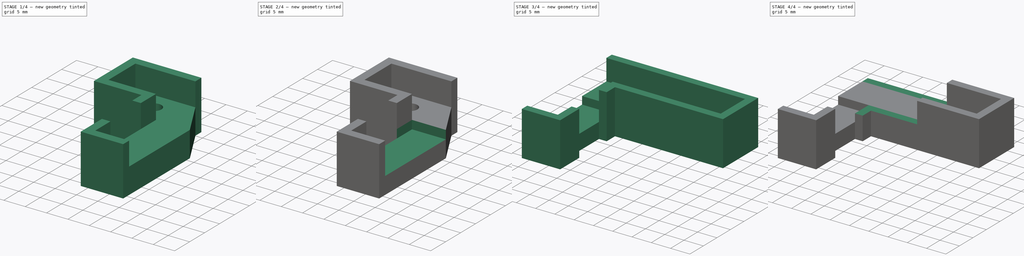
[diagram: build sequence overview — one tinted view per stage of 4, left to right]
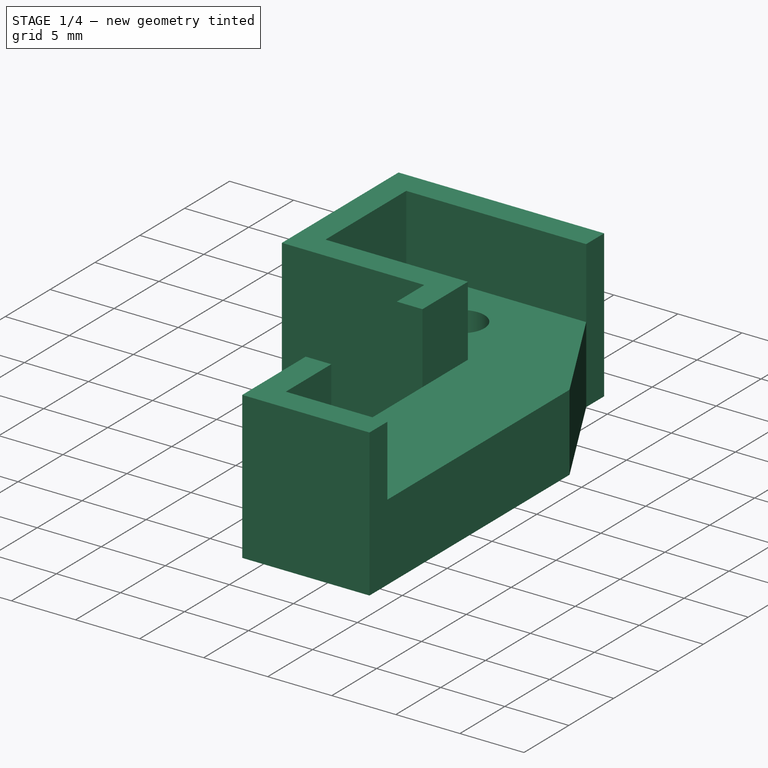
[diagram: stage 1 of 4 — iso view after this stage's code; geometry added in this stage tinted green]
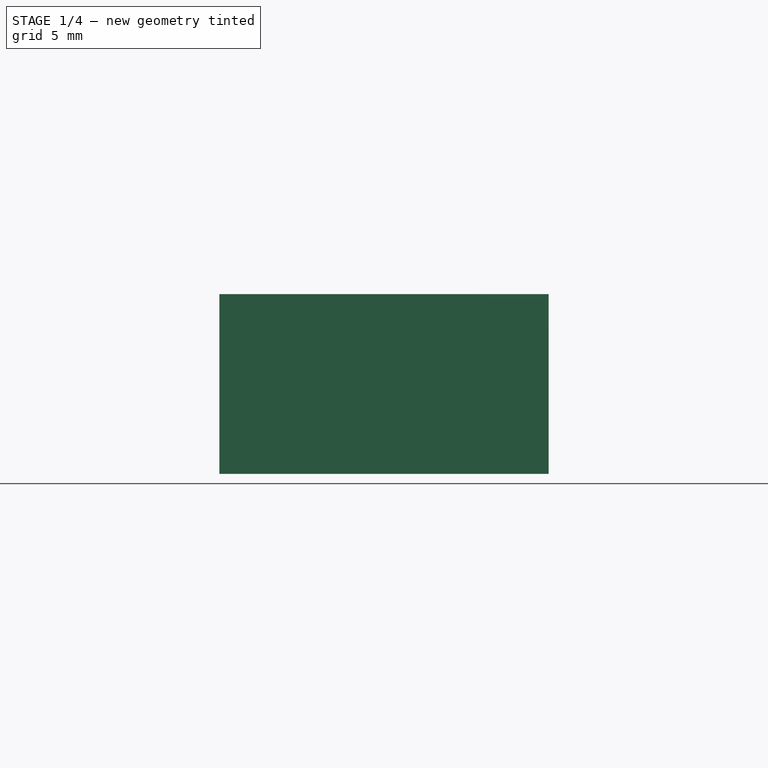
[diagram: stage 1 of 4 — front view after this stage's code; geometry added in this stage tinted green]
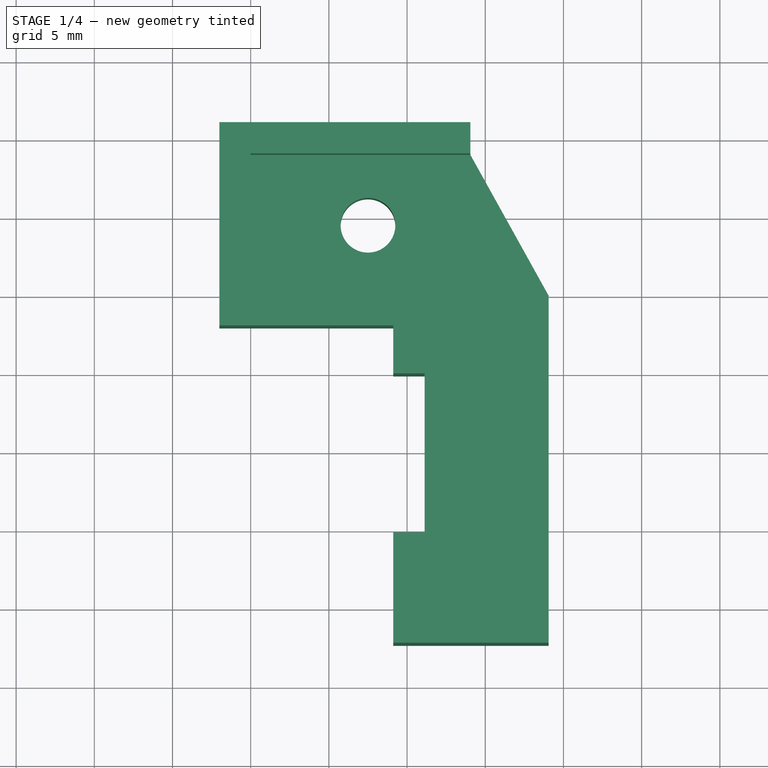
[diagram: stage 1 of 4 — top view after this stage's code; geometry added in this stage tinted green]
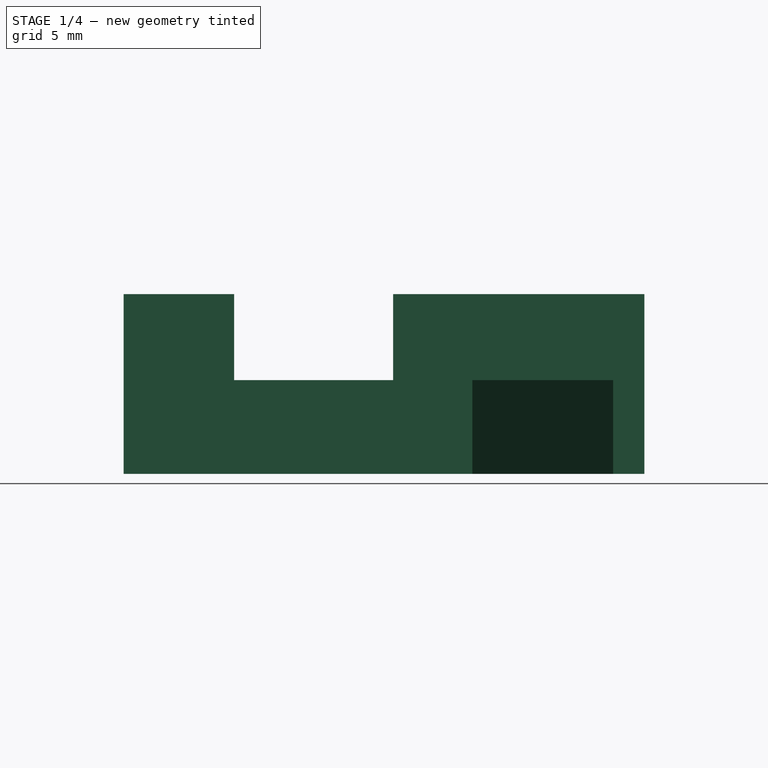
[diagram: stage 1 of 4 — right view after this stage's code; geometry added in this stage tinted green]
FCSTD DOCUMENT  (FreeCAD 0.21R33668 +26 (Git))
Label: BaseMagnetoPot
License: All rights reserved
LicenseURL: http://en.wikipedia.org/wiki/All_rights_reserved
objects: Sketcher::SketchObject×10, PartDesign::Pocket×5, PartDesign::Pad×4, PartDesign::SubShapeBinder×2, PartDesign::Body×2
note: 32 computed .brp shape members not serialized (recipe doc carries the construction recipe); baked Part::Feature solids carry a one-line shape summary decoded from their .brp
EXTERNAL_REF file=MG/Datasheet.FCStd obj=Spreadsheet
EXTERNAL_REF file=MG/mgn9c_13.FCStd obj=Body
EXTERNAL_REF file=MagnetoPot/MagnetoPot.FCStd obj=Body
EXTERNAL_REF file=MG/mgn9c_13.FCStd obj=Sketch

FEATURE [PartDesign::SubShapeBinder] Binder  label="Rail"
  BindCopyOnChange = 0
  BindMode = 0
  ClaimChildren = false
  Context = -> Body [Binder.]
  Fuse = false
  MakeFace = true
  OffsetFill = false
  OffsetIntersection = false
  OffsetJoinType = 0
  OffsetOpenResult = false
  PartialLoad = false
  Relative = true
  Support = -> [<external MG/mgn9c_13.FCStd>#Body]
  _Version = 2
FEATURE [Sketcher::SketchObject] Sketch
  ExternalGeometry = -> [Binder]
  FullyConstrained = true
  MapMode = 5
  Support = -> [XY_Plane]
  expr: .Constraints.EndStopToActiveDistance = (<<Datasheet>>#<<mgn9c>>.Dim_L - <<Datasheet>>#<<mgn9c>>.Dim_L1) / 2
  expr: .Constraints.PartWidth = 20.3
  expr: .Constraints.TravelDistance = 200 mm + <<Datasheet>>#<<mgn9c>>.Dim_L - 2 mm
  expr: Constraints[25] = <<Datasheet>>#<<mgn9c>>.Dim_L
  sketch-geometry (23):
    g0: Circle CenterX=7.5 CenterY=4.5 CenterZ=0 NormalX=0 NormalY=0 NormalZ=1 AngleXU=0 Radius=1.75
    g1: LineSegment StartX=0 StartY=0 StartZ=0 EndX=14.05 EndY=0 EndZ=0
    g2: LineSegment StartX=14.05 StartY=0 StartZ=0 EndX=14.05 EndY=9 EndZ=0
    g3: LineSegment StartX=14.05 StartY=9 StartZ=0 EndX=0 EndY=9 EndZ=0
    g4: LineSegment StartX=0 StartY=9 StartZ=0 EndX=0 EndY=0 EndZ=0
    g5: GeomPoint X=127.5 Y=9 Z=0
    g6: GeomPoint X=240.95 Y=9 Z=0
    g7: GeomPoint X=7.5 Y=6.25 Z=0
    g8: LineSegment StartX=14.05 StartY=9 StartZ=0 EndX=19.05 EndY=9 EndZ=0
    g9: LineSegment StartX=19.05 StartY=0 StartZ=0 EndX=14.05 EndY=9 EndZ=0
    g10: GeomPoint X=219.05 Y=0 Z=0
    g11: GeomPoint X=212.05 Y=9 Z=0
    g12: GeomPoint X=119.05 Y=0 Z=0
    g13: GeomPoint X=11.12 Y=0 Z=0
    g14: GeomPoint X=226.98 Y=0 Z=0
    g15: LineSegment StartX=19.05 StartY=0 StartZ=0 EndX=19.05 EndY=-20.3 EndZ=0
    g16: LineSegment StartX=11.12 StartY=-20.3 StartZ=0 EndX=19.05 EndY=-20.3 EndZ=0
    g17: LineSegment StartX=11.12 StartY=0 StartZ=0 EndX=11.12 EndY=-20.3 EndZ=0
    g18: GeomPoint X=0 Y=0 Z=0
    g19: GeomPoint X=11.12 Y=0 Z=0
    g20: GeomPoint X=0 Y=0 Z=0
    g21: GeomPoint X=11.12 Y=0 Z=0
    g22: LineSegment StartX=0 StartY=0 StartZ=0 EndX=11.12 EndY=0 EndZ=0
  constraints (49):
    c: Coincident(g0,g-5)
    c: Coincident(g1,g2)
    c: Coincident(g2,g3)
    c: Coincident(g3,g4)
    c: Coincident(g4,g1)
    c: Horizontal(g1)
    c: Horizontal(g3)
    c: Vertical(g2)
    c: Vertical(g4)
    c: Coincident(g1,g-4)
    c: PointOnObject(g2,g-3)
    c: Symmetric(g3,g-3,g5)
    c: Symmetric(g2,g6,g5)
    c: DistanceX(g2,g6) = 226.9  'TravelDistance'
    c: PointOnObject(g7,g0)
    c: PointOnObject(g7,g-5)
    c: Vertical(g7,g0)
    c: Coincident(g8,g3)
    c: PointOnObject(g8,g-3)
    c: DistanceX(g8,g8) = 5  'EndStopToActiveDistance'
    c: PointOnObject(g9,g-4)
    c: Coincident(g9,g3)
    c: PointOnObject(g10,g-4)
    c: DistanceX(g9,g10) = 200  'MagnetoPotActiveLength'
    c: PointOnObject(g11,g-3)
    c: DistanceX(g11,g6) = 28.9
    c: Symmetric(g10,g9,g12)
    c: Symmetric(g14,g13,g12)
    c: DistanceX(g13,g14) = 215.86  'MagnetoPotPartLength'
    c: Vertical(g9,g8)
    c: Coincident(g15,g9)
    c: Vertical(g15)
    c: Coincident(g16,g15)
    c: Horizontal(g16)
    c: Coincident(g17,g16)
    c: Coincident(g18,g4)
    c: Coincident(g19,g17)
    c: Vertical(g17)
    c: DistanceY(g17,g17) = 20.3  'PartWidth'
    c: Coincident(g20,g4)
    c: Coincident(g21,g17)
    c: Coincident(g22,g4)
    c: Coincident(g22,g17)
    c: PointOnObject(g17,g1)
    c: Coincident(g17,g13)
    c: DistanceX(g14,g-4) = 28.02  'Base_End'
    c: DistanceX(g3,g3) = 14.05  'EndStopDistance'
    c: DistanceX(g4,g17) = 11.12  'Rail_To_Part'
    c: DistanceX(g16,g15) = 7.93  'PartStartToActiveStart'
FEATURE [PartDesign::Pad] Pad
  Direction = (0,0,1)
  Length = 6
  Length2 = 10
  Profile = -> Sketch
  ReferenceAxis = -> Sketch [N_Axis]
  Reversed = true
  Type = 0
FEATURE [PartDesign::SubShapeBinder] Binder001  label="MagnetoPot_Binder"
  BindCopyOnChange = 0
  BindMode = 0
  ClaimChildren = false
  Context = -> Body [Binder001.]
  Fuse = false
  MakeFace = true
  OffsetFill = false
  OffsetIntersection = false
  OffsetJoinType = 0
  OffsetOpenResult = false
  PartialLoad = false
  Placement = pos=(5,-20.5,0) rot=(0,0,1;0rad)
  Relative = true
  Support = -> [<external MagnetoPot/MagnetoPot.FCStd>#Body]
  _Version = 2
FEATURE [Sketcher::SketchObject] Sketch001
  ExternalGeometry = -> [Pad]
  FullyConstrained = true
  MapMode = 5
  Placement = pos=(0,0,-6) rot=(1,0,0;3.14159rad)
  Support = -> [Pad]
  expr: .Constraints.MagnetoPotTailWidth = 10.16
  expr: Constraints[22] = .Constraints.Strength
  expr: Constraints[23] = .Constraints.Strength
  expr: Constraints[25] = .Constraints.Strength
  expr: Constraints[28] = .Constraints.Strength
  sketch-geometry (21):
    g0: LineSegment StartX=19.05 StartY=20.3 StartZ=0 EndX=19.05 EndY=22.3 EndZ=0
    g1: LineSegment StartX=19.05 StartY=22.3 StartZ=0 EndX=9.12 EndY=22.3 EndZ=0
    g2: LineSegment StartX=9.12 StartY=22.3 StartZ=0 EndX=9.12 EndY=2 EndZ=0
    g3: LineSegment StartX=9.12 StartY=2 StartZ=0 EndX=-2 EndY=2 EndZ=0
    g4: LineSegment StartX=-2 StartY=2 StartZ=0 EndX=-2 EndY=-11 EndZ=0
    g5: LineSegment StartX=-2 StartY=-11 StartZ=0 EndX=14.05 EndY=-11 EndZ=0
    g6: LineSegment StartX=14.05 StartY=-11 StartZ=0 EndX=14.05 EndY=-9 EndZ=0
    g7: LineSegment StartX=14.05 StartY=-9 StartZ=0 EndX=0 EndY=-9 EndZ=0
    g8: LineSegment StartX=0 StartY=0 StartZ=0 EndX=0 EndY=-9 EndZ=0
    g9: LineSegment StartX=0 StartY=0 StartZ=0 EndX=11.12 EndY=0 EndZ=0
    g10: LineSegment StartX=11.12 StartY=0 StartZ=0 EndX=11.12 EndY=20.3 EndZ=0
    g11: LineSegment StartX=11.12 StartY=20.3 StartZ=0 EndX=19.05 EndY=20.3 EndZ=0
    g12: GeomPoint X=11.12 Y=15.23 Z=0
    g13: GeomPoint X=11.12 Y=10.15 Z=0
    g14: GeomPoint X=11.12 Y=5.07 Z=0
    g15: LineSegment StartX=11.12 StartY=20.3 StartZ=0 EndX=11.12 EndY=15.23 EndZ=0
    g16: LineSegment StartX=11.12 StartY=15.23 StartZ=0 EndX=9.12 EndY=15.23 EndZ=0
    g17: LineSegment StartX=9.12 StartY=15.23 StartZ=0 EndX=9.12 EndY=22.3 EndZ=0
    g18: LineSegment StartX=11.12 StartY=5.07 StartZ=0 EndX=9.12 EndY=5.07 EndZ=0
    g19: LineSegment StartX=9.12 StartY=5.07 StartZ=0 EndX=9.12 EndY=2 EndZ=0
    g20: LineSegment StartX=11.12 StartY=0 StartZ=0 EndX=11.12 EndY=5.07 EndZ=0
  constraints (48):
    c: Coincident(g0,g-7)
    c: Vertical(g0)
    c: Horizontal(g1)
    c: Coincident(g2,g1)
    c: Coincident(g3,g2)
    c: Horizontal(g3)
    c: Coincident(g4,g3)
    c: Coincident(g5,g4)
    c: Coincident(g6,g5)
    c: Coincident(g6,g-5)
    c: Coincident(g7,g6)
    c: Coincident(g7,g-5)
    c: Coincident(g8,g-4)
    c: Coincident(g8,g7)
    c: Coincident(g9,g8)
    c: Coincident(g9,g-6)
    c: Coincident(g10,g9)
    c: Coincident(g10,g-7)
    c: Coincident(g11,g10)
    c: Coincident(g11,g0)
    c: Coincident(g0,g1)
    c: DistanceY(g0,g0) = 2  'Strength'
    c: DistanceX(g1,g10) = 2
    c: DistanceY(g9,g2) = 2
    c: Vertical(g2)
    c: DistanceX(g3,g8) = 2
    c: Vertical(g4)
    c: Horizontal(g5)
    c: DistanceY(g4,g7) = 2
    c: Vertical(g6)
    c: PointOnObject(g12,g10)
    c: Symmetric(g9,g11,g13)
    c: Symmetric(g12,g14,g13)
    c: DistanceY(g14,g12) = 10.16  'MagnetoPotTailWidth'
    c: Coincident(g15,g11)
    c: Coincident(g15,g12)
    c: Coincident(g16,g12)
    c: PointOnObject(g16,g2)
    c: Horizontal(g16)
    c: Coincident(g17,g16)
    c: Coincident(g17,g1)
    c: Coincident(g18,g14)
    c: PointOnObject(g18,g2)
    c: Coincident(g19,g18)
    c: Coincident(g19,g3)
    c: Coincident(g20,g9)
    c: Coincident(g20,g18)
    c: Horizontal(g18)
FEATURE [PartDesign::Pad] Pad001
  BaseFeature = -> Pad
  Direction = (0,0,-1)
  Length = 11.5
  Length2 = 10
  Profile = -> Sketch001
  ReferenceAxis = -> Sketch001 [N_Axis]
  Reversed = true
  Type = 0
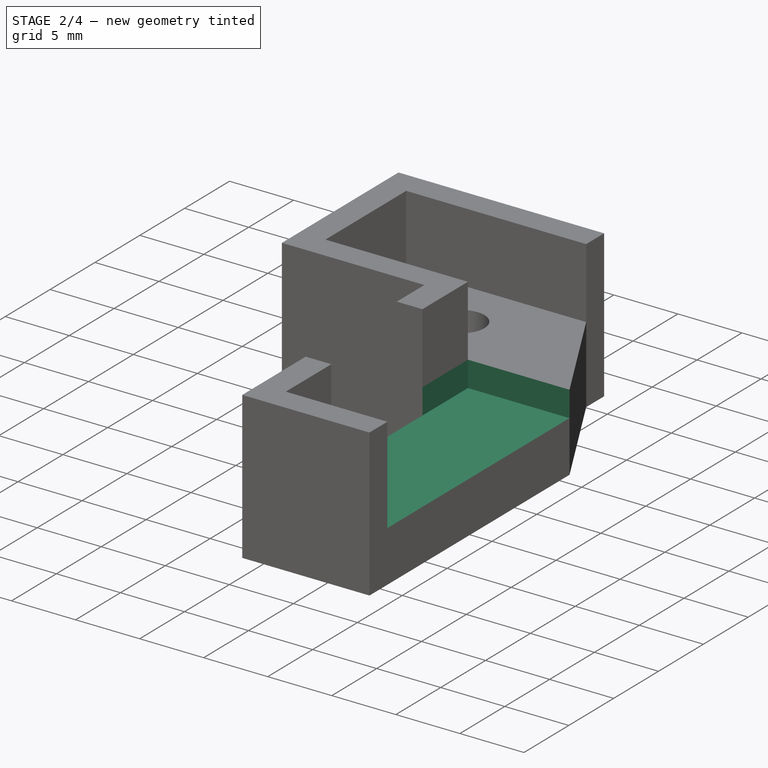
[diagram: stage 2 of 4 — iso view after this stage's code; geometry added in this stage tinted green]
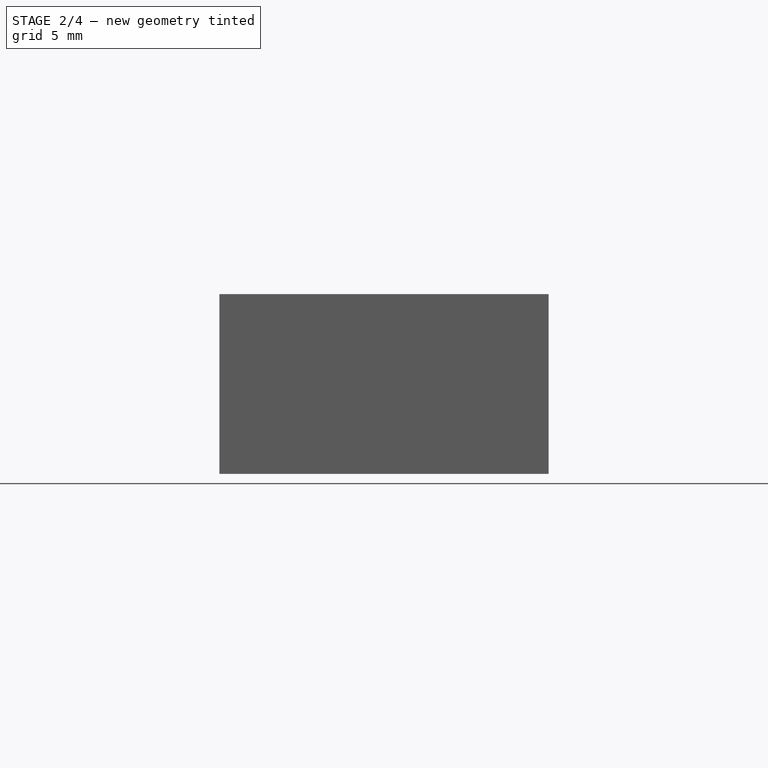
[diagram: stage 2 of 4 — front view after this stage's code; geometry added in this stage tinted green]
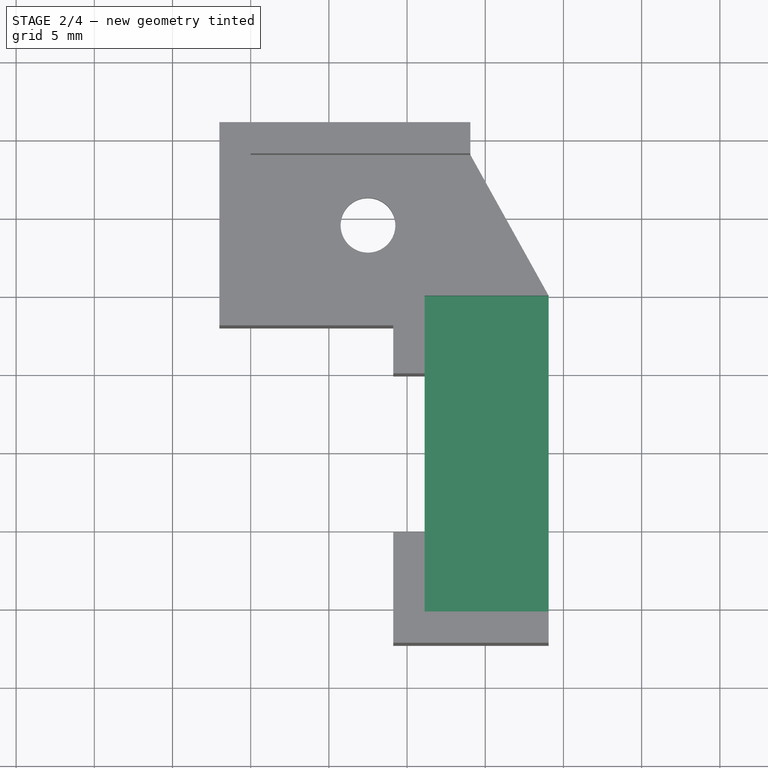
[diagram: stage 2 of 4 — top view after this stage's code; geometry added in this stage tinted green]
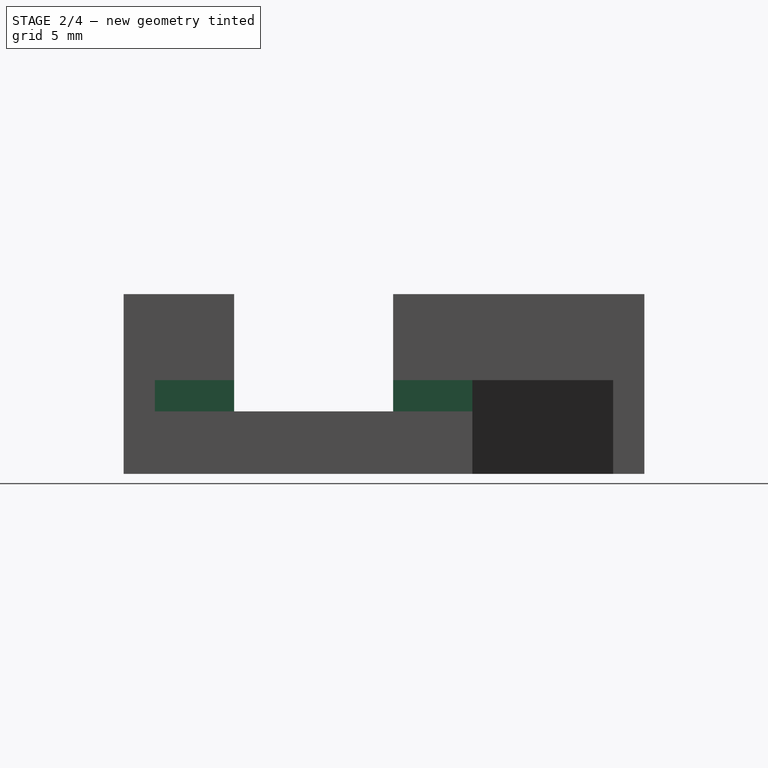
[diagram: stage 2 of 4 — right view after this stage's code; geometry added in this stage tinted green]
FEATURE [Sketcher::SketchObject] Sketch002
  ExternalGeometry = -> [Pad001]
  FullyConstrained = true
  MapMode = 5
  Support = -> [Pad001]
  sketch-geometry (4):
    g0: LineSegment StartX=19.05 StartY=0 StartZ=0 EndX=11.12 EndY=0 EndZ=0
    g1: LineSegment StartX=11.12 StartY=0 StartZ=0 EndX=11.12 EndY=-20.3 EndZ=0
    g2: LineSegment StartX=11.12 StartY=-20.3 StartZ=0 EndX=19.05 EndY=-20.3 EndZ=0
    g3: LineSegment StartX=19.05 StartY=-20.3 StartZ=0 EndX=19.05 EndY=0 EndZ=0
  constraints (10):
    c: Coincident(g0,g1)
    c: Coincident(g1,g2)
    c: Coincident(g2,g3)
    c: Coincident(g3,g0)
    c: Horizontal(g0)
    c: Horizontal(g2)
    c: Vertical(g1)
    c: Coincident(g0,g-4)
    c: PointOnObject(g-3,g1)
    c: Coincident(g2,g-4)
FEATURE [PartDesign::Pocket] Pocket
  BaseFeature = -> Pad001
  Direction = (0,0,-1)
  Length = 2
  Length2 = 5
  Profile = -> Sketch002
  ReferenceAxis = -> Sketch002 [N_Axis]
  Type = 0
  expr: Length = 3.5 mm - <<Datasheet>>#<<mgn9c>>.Dim_H1 + 0.5 mm
FEATURE [Sketcher::SketchObject] Sketch003
  ExternalGeometry = -> [Pocket]
  FullyConstrained = true
  MapMode = 5
  Placement = pos=(0,0,-6) rot=(1,0,0;3.14159rad)
  Support = -> [Pocket]
  expr: Constraints[1] = <<Datasheet>>#<<mgn9c>>.Dim_D
  sketch-geometry (1):
    g0: Circle CenterX=7.5 CenterY=-4.5 CenterZ=0 NormalX=0 NormalY=0 NormalZ=1 AngleXU=0 Radius=3
  constraints (2):
    c: Coincident(g0,g-3)
    c: Diameter(g0) = 6
FEATURE [PartDesign::Pocket] Pocket001
  BaseFeature = -> Pocket
  Direction = (0,0,1)
  Length = 4
  Length2 = 5
  Profile = -> Sketch003
  ReferenceAxis = -> Sketch003 [N_Axis]
  Type = 0
  expr: Length = <<Pad>>.Length - (<<Datasheet>>#<<mgn9c>>.Dim_Hr - <<Datasheet>>#<<mgn9c>>.Dim_h - 1 mm)
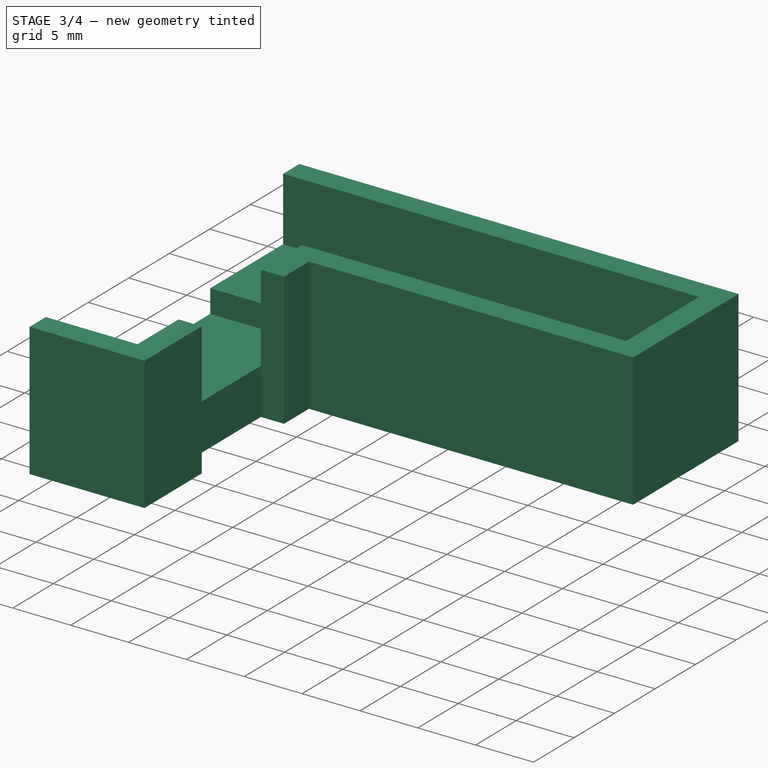
[diagram: stage 3 of 4 — iso view after this stage's code; geometry added in this stage tinted green]
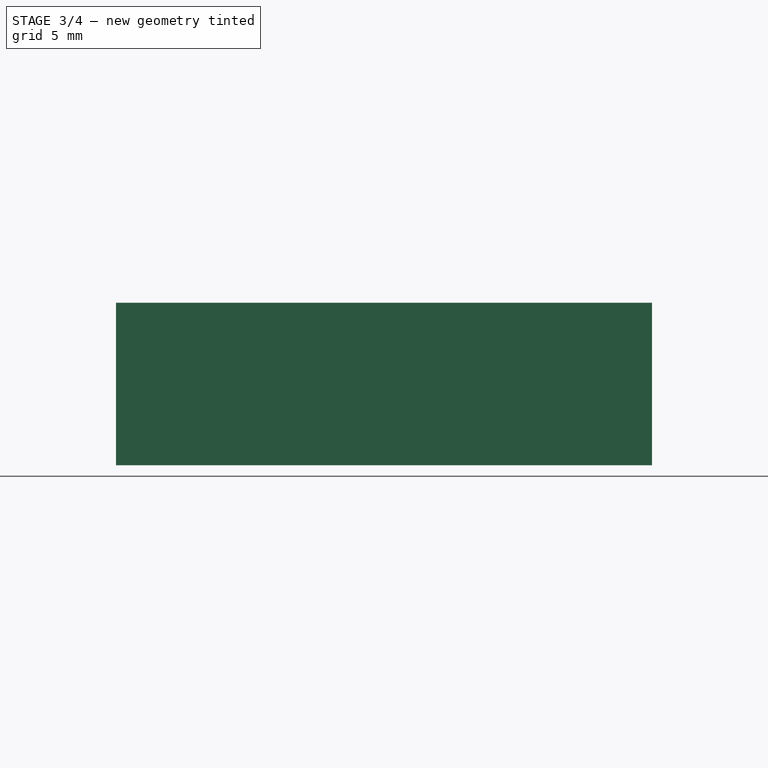
[diagram: stage 3 of 4 — front view after this stage's code; geometry added in this stage tinted green]
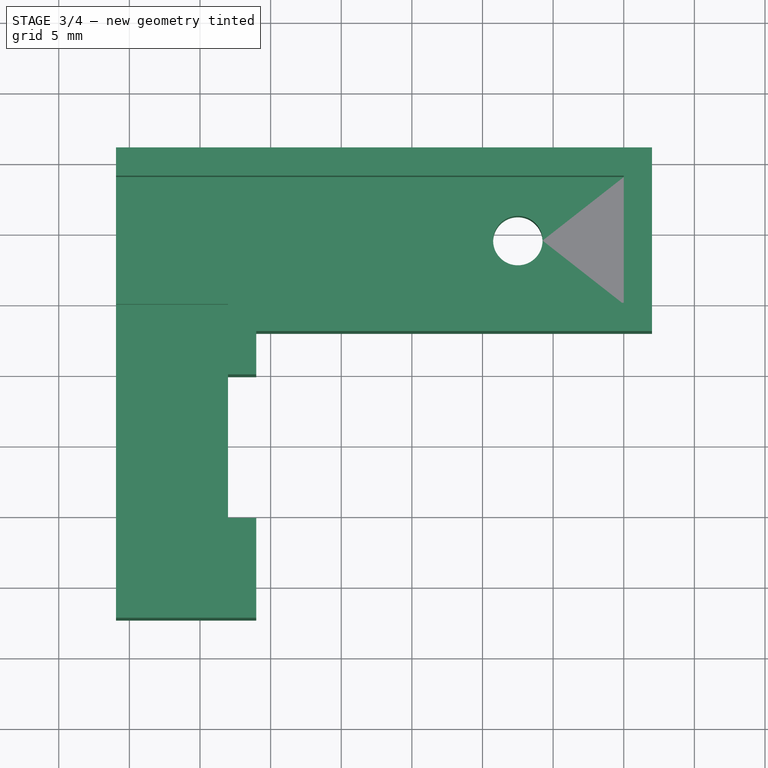
[diagram: stage 3 of 4 — top view after this stage's code; geometry added in this stage tinted green]
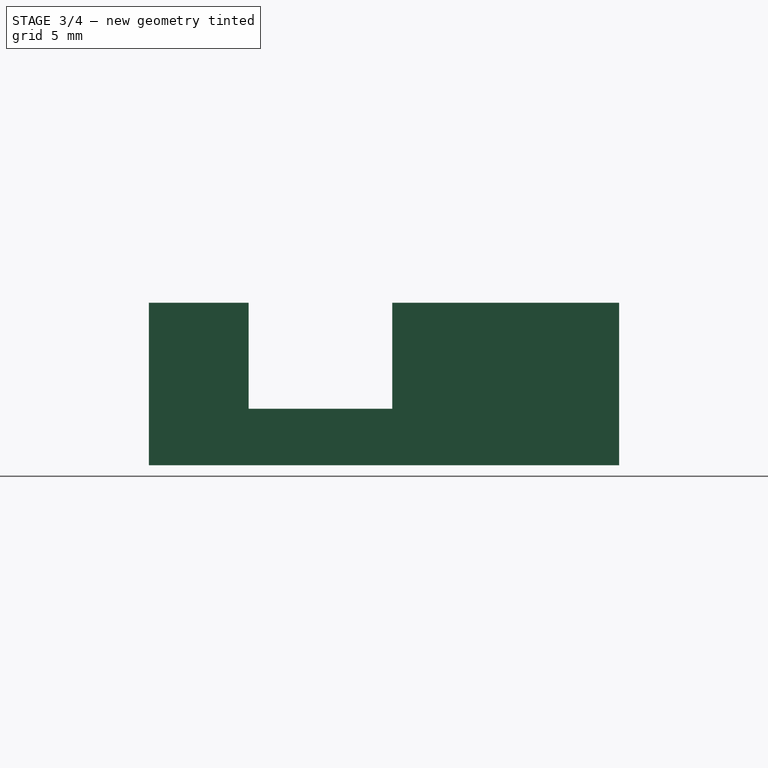
[diagram: stage 3 of 4 — right view after this stage's code; geometry added in this stage tinted green]
FEATURE [Sketcher::SketchObject] Sketch004
  FullyConstrained = true
  MapMode = 5
  Support = -> [XY_Plane001]
  expr: Constraints[10] = <<mgn9c_13>>#<<Sketch>>.Constraints.Rail_Length
  expr: Constraints[28] = <<Sketch>>.Constraints.MagnetoPotActiveLength
  expr: Constraints[29] = <<Sketch>>.Constraints.MagnetoPotPartLength
  expr: Constraints[34] = <<Sketch>>.Constraints.TravelDistance
  expr: Constraints[35] = <<Sketch>>.Constraints.EndStopDistance
  expr: Constraints[37] = <<Sketch>>.Constraints.EndStopToActiveDistance
  expr: Constraints[38] = <<Sketch>>.Constraints.PartWidth
  expr: Constraints[44] = <<Datasheet>>#<<mgn9c>>.Dim_d
  expr: Constraints[45] = <<Datasheet>>#<<mgn9c>>.Dim_E
  expr: Constraints[9] = <<Datasheet>>#<<mgn9c>>.Dim_Wr
  sketch-geometry (21):
    g0: LineSegment StartX=-255 StartY=9 StartZ=0 EndX=0 EndY=9 EndZ=0
    g1: LineSegment StartX=0 StartY=9 StartZ=0 EndX=0 EndY=0 EndZ=0
    g2: LineSegment StartX=0 StartY=0 StartZ=0 EndX=-255 EndY=0 EndZ=0
    g3: LineSegment StartX=-255 StartY=0 StartZ=0 EndX=-255 EndY=9 EndZ=0
    g4: LineSegment StartX=-35.95 StartY=-20.3 StartZ=0 EndX=-35.95 EndY=9 EndZ=0
    g5: LineSegment StartX=-35.95 StartY=9 StartZ=0 EndX=0 EndY=9 EndZ=0
    g6: LineSegment StartX=0 StartY=9 StartZ=0 EndX=0 EndY=0 EndZ=0
    g7: LineSegment StartX=0 StartY=0 StartZ=0 EndX=-28.02 EndY=0 EndZ=0
    g8: LineSegment StartX=-28.02 StartY=0 StartZ=0 EndX=-28.02 EndY=-20.3 EndZ=0
    g9: LineSegment StartX=-35.95 StartY=-20.3 StartZ=0 EndX=-28.02 EndY=-20.3 EndZ=0
    g10: GeomPoint X=-135.95 Y=0 Z=0
    g11: GeomPoint X=-235.95 Y=0 Z=0
    g12: GeomPoint X=-35.95 Y=0 Z=0
    g13: GeomPoint X=-243.88 Y=0 Z=0
    g14: GeomPoint X=-28.02 Y=0 Z=0
    g15: GeomPoint X=-240.95 Y=9 Z=0
    g16: GeomPoint X=-14.05 Y=9 Z=0
    g17: GeomPoint X=-127.5 Y=9 Z=0
    g18: Circle CenterX=-7.5 CenterY=4.5 CenterZ=0 NormalX=0 NormalY=0 NormalZ=1 AngleXU=0 Radius=1.75
    g19: GeomPoint X=-7.5 Y=4.5 Z=0
    g20: LineSegment StartX=-7.5 StartY=4.5 StartZ=0 EndX=0 EndY=4.5 EndZ=0
  constraints (46):
    c: Coincident(g0,g1)
    c: Coincident(g1,g2)
    c: Coincident(g2,g3)
    c: Coincident(g3,g0)
    c: Horizontal(g0)
    c: Horizontal(g2)
    c: Vertical(g1)
    c: Vertical(g3)
    c: Coincident(g1,g-1)
    c: DistanceY(g1,g1) = 9
    c: DistanceX(g0,g0) = 255
    c: Coincident(g4,g5)
    c: Coincident(g5,g6)
    c: Horizontal(g5)
    c: Vertical(g4)
    c: Vertical(g6)
    c: PointOnObject(g4,g0)
    c: Coincident(g7,g6)
    c: PointOnObject(g7,g2)
    c: Coincident(g8,g7)
    c: Vertical(g8)
    c: Coincident(g9,g4)
    c: Coincident(g9,g8)
    c: Horizontal(g9)
    c: PointOnObject(g10,g2)
    c: PointOnObject(g11,g2)
    c: Symmetric(g14,g13,g10)
    c: Symmetric(g11,g12,g10)
    c: DistanceX(g11,g12) = 200
    c: DistanceX(g13,g14) = 215.86
    c: Coincident(g14,g7)
    c: PointOnObject(g15,g0)
    c: PointOnObject(g16,g0)
    c: Symmetric(g15,g16,g17)
    c: DistanceX(g15,g16) = 226.9
    c: DistanceX(g0,g15) = 14.05
    c: PointOnObject(g12,g4)
    c: DistanceX(g15,g11) = 5
    c: DistanceY(g8,g8) = 20.3
    c: Coincident(g6,g1)
    c: Coincident(g19,g18)
    c: Horizontal(g20)
    c: Coincident(g18,g20)
    c: Symmetric(g5,g6,g20)
    c: Diameter(g18) = 3.5
    c: DistanceX(g18,g20) = 7.5
FEATURE [PartDesign::Pad] Pad002
  Direction = (0,0,1)
  Length = 6
  Length2 = 10
  Profile = -> Sketch004
  ReferenceAxis = -> Sketch004 [N_Axis]
  Reversed = true
  Type = 0
  expr: Length = <<Pad>>.Length
FEATURE [Sketcher::SketchObject] Sketch006
  ExternalGeometry = -> [Pad002]
  FullyConstrained = true
  MapMode = 5
  Placement = pos=(0,0,-6) rot=(1,0,0;3.14159rad)
  Support = -> [Pad002]
  expr: Constraints[18] = <<Sketch001>>.Constraints.Strength
  expr: Constraints[19] = <<Sketch001>>.Constraints.Strength
  expr: Constraints[20] = <<Sketch001>>.Constraints.Strength
  expr: Constraints[21] = <<Sketch001>>.Constraints.Strength
  expr: Constraints[23] = <<Sketch001>>.Constraints.Strength
  expr: Constraints[27] = <<Sketch001>>.Constraints.MagnetoPotTailWidth
  sketch-geometry (17):
    g0: LineSegment StartX=2 StartY=2 StartZ=0 EndX=2 EndY=-11 EndZ=0
    g1: LineSegment StartX=2 StartY=-11 StartZ=0 EndX=-35.95 EndY=-11 EndZ=0
    g2: LineSegment StartX=-35.95 StartY=-11 StartZ=0 EndX=-35.95 EndY=-9 EndZ=0
    g3: LineSegment StartX=-35.95 StartY=22.3 StartZ=0 EndX=-26.02 EndY=22.3 EndZ=0
    g4: LineSegment StartX=-26.02 StartY=22.3 StartZ=0 EndX=-26.02 EndY=15.23 EndZ=0
    g5: LineSegment StartX=-26.02 StartY=15.23 StartZ=0 EndX=-28.02 EndY=15.23 EndZ=0
    g6: LineSegment StartX=-28.02 StartY=5.07 StartZ=0 EndX=-26.02 EndY=5.07 EndZ=0
    g7: LineSegment StartX=-26.02 StartY=5.07 StartZ=0 EndX=-26.02 EndY=2 EndZ=0
    g8: LineSegment StartX=-26.02 StartY=2 StartZ=0 EndX=2 EndY=2 EndZ=0
    g9: LineSegment StartX=-35.95 StartY=22.3 StartZ=0 EndX=-35.95 EndY=20.3 EndZ=0
    g10: GeomPoint X=-28.02 Y=10.15 Z=0
    g11: LineSegment StartX=-35.95 StartY=20.3 StartZ=0 EndX=-28.02 EndY=20.3 EndZ=0
    g12: LineSegment StartX=-28.02 StartY=20.3 StartZ=0 EndX=-28.02 EndY=15.23 EndZ=0
    g13: LineSegment StartX=-28.02 StartY=5.07 StartZ=0 EndX=-28.02 EndY=0 EndZ=0
    g14: LineSegment StartX=-28.02 StartY=0 StartZ=0 EndX=0 EndY=0 EndZ=0
    g15: LineSegment StartX=0 StartY=0 StartZ=0 EndX=0 EndY=-9 EndZ=0
    g16: LineSegment StartX=0 StartY=-9 StartZ=0 EndX=-35.95 EndY=-9 EndZ=0
  constraints (42):
    c: Vertical(g0)
    c: Coincident(g1,g0)
    c: Horizontal(g1)
    c: Coincident(g2,g1)
    c: Coincident(g2,g-6)
    c: Vertical(g2)
    c: Horizontal(g3)
    c: Coincident(g4,g3)
    c: Vertical(g4)
    c: PointOnObject(g5,g-3)
    c: Horizontal(g5)
    c: Coincident(g8,g7)
    c: Coincident(g8,g0)
    c: Horizontal(g8)
    c: Coincident(g4,g5)
    c: Coincident(g6,g7)
    c: Horizontal(g6)
    c: Vertical(g7)
    c: DistanceY(g2,g2) = 2
    c: DistanceX(g-6,g0) = 2
    c: DistanceY(g-1,g0) = 2
    c: DistanceX(g-3,g7) = 2
    c: Vertical(g4,g6)
    c: DistanceY(g-5,g3) = 2
    c: Coincident(g9,g3)
    c: Vertical(g9)
    c: Coincident(g9,g-5)
    c: DistanceY(g6,g4) = 10.16
    c: Symmetric(g-5,g-3,g10)
    c: Symmetric(g5,g6,g10)
    c: Coincident(g11,g9)
    c: Coincident(g11,g-5)
    c: Coincident(g12,g11)
    c: Coincident(g12,g5)
    c: Coincident(g6,g13)
    c: Coincident(g13,g-3)
    c: Coincident(g13,g14)
    c: Coincident(g14,g-1)
    c: Coincident(g14,g15)
    c: Coincident(g15,g-6)
    c: Coincident(g15,g16)
    c: Coincident(g16,g2)
FEATURE [Sketcher::SketchObject] Sketch007  label="Measurements"
  ExternalGeometry = -> [Pocket001]
  FullyConstrained = true
  MapMode = 5
  Placement = pos=(0,0,0) rot=(1,0,0;1.5708rad)
  Support = -> [XZ_Plane]
  constraints (3):
    c: DistanceY(g-4,g-5) = 6  'BaseHeight'
    c: DistanceY(g-4,g-6) = 4  'MagnetoPotHeight'
    c: DistanceY(g-4,g-3) = 11.5  'TotalHeight'
FEATURE [PartDesign::Body] Body  label="BaseMagentoPot"
  Group = -> [Sketch,Binder,Pad,Binder001,Sketch001,Pad001,Sketch002,Pocket,Sketch003,Pocket001,Sketch007]
  Origin = -> Origin
  Tip = -> Pocket001
FEATURE [PartDesign::Pad] Pad003
  BaseFeature = -> Pad002
  Direction = (0,0,-1)
  Length = 11.5
  Length2 = 10
  Profile = -> Sketch006
  ReferenceAxis = -> Sketch006 [N_Axis]
  Reversed = true
  Type = 0
  expr: Length = Sketch007.Constraints.TotalHeight
FEATURE [Sketcher::SketchObject] Sketch008
  ExternalGeometry = -> [Pad003]
  FullyConstrained = true
  MapMode = 5
  Support = -> [Pad003]
  sketch-geometry (4):
    g0: LineSegment StartX=-35.95 StartY=-20.3 StartZ=0 EndX=-28.02 EndY=-20.3 EndZ=0
    g1: LineSegment StartX=-28.02 StartY=-20.3 StartZ=0 EndX=-28.02 EndY=0 EndZ=0
    g2: LineSegment StartX=-28.02 StartY=0 StartZ=0 EndX=-35.95 EndY=0 EndZ=0
    g3: LineSegment StartX=-35.95 StartY=0 StartZ=0 EndX=-35.95 EndY=-20.3 EndZ=0
  constraints (10):
    c: Coincident(g0,g1)
    c: Coincident(g1,g2)
    c: Coincident(g2,g3)
    c: Coincident(g3,g0)
    c: Horizontal(g0)
    c: Horizontal(g2)
    c: Vertical(g1)
    c: Vertical(g3)
    c: Coincident(g0,g-4)
    c: Coincident(g1,g-3)
FEATURE [PartDesign::Pocket] Pocket002
  BaseFeature = -> Pad003
  Direction = (0,0,-1)
  Length = 2
  Length2 = 5
  Profile = -> Sketch008
  ReferenceAxis = -> Sketch008 [N_Axis]
  Type = 0
  expr: Length = <<Measurements>>.Constraints.BaseHeight - <<Measurements>>.Constraints.MagnetoPotHeight
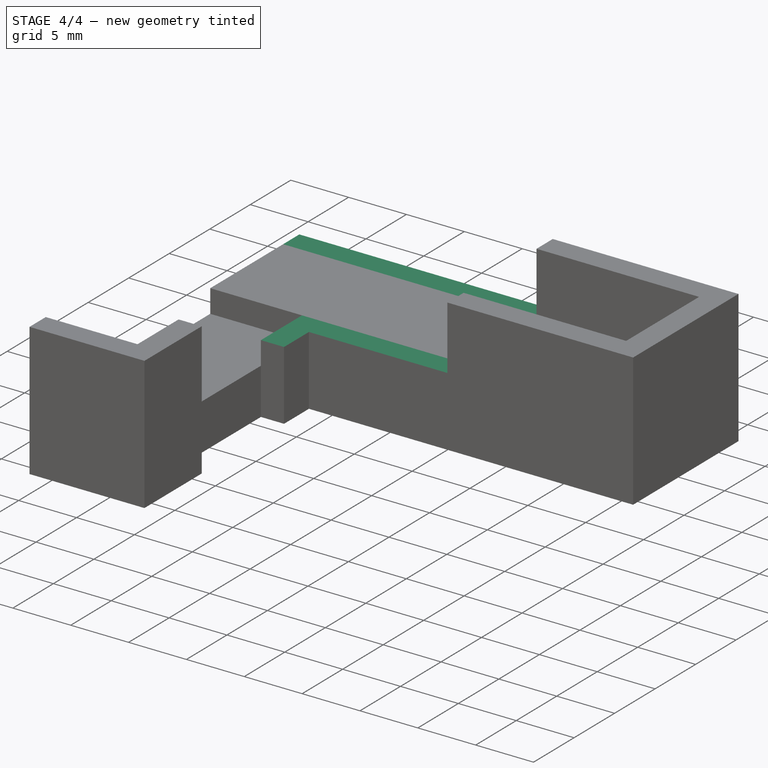
[diagram: stage 4 of 4 — iso view after this stage's code; geometry added in this stage tinted green]
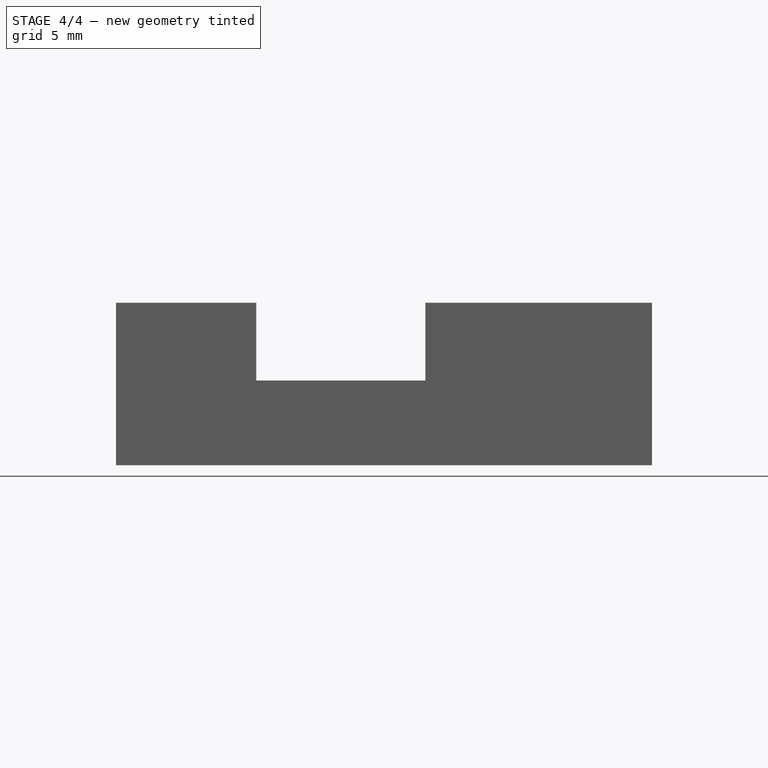
[diagram: stage 4 of 4 — front view after this stage's code; geometry added in this stage tinted green]
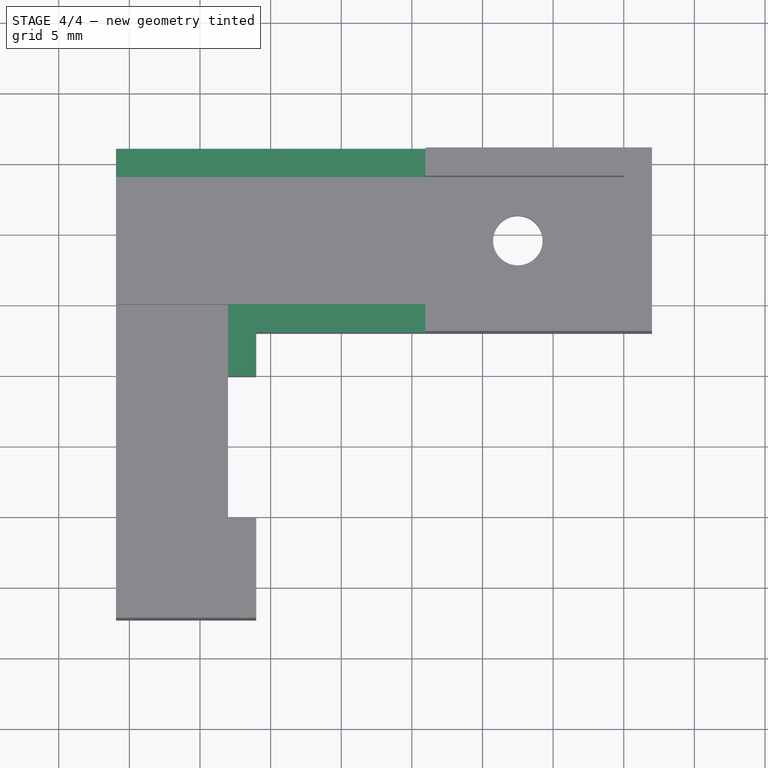
[diagram: stage 4 of 4 — top view after this stage's code; geometry added in this stage tinted green]
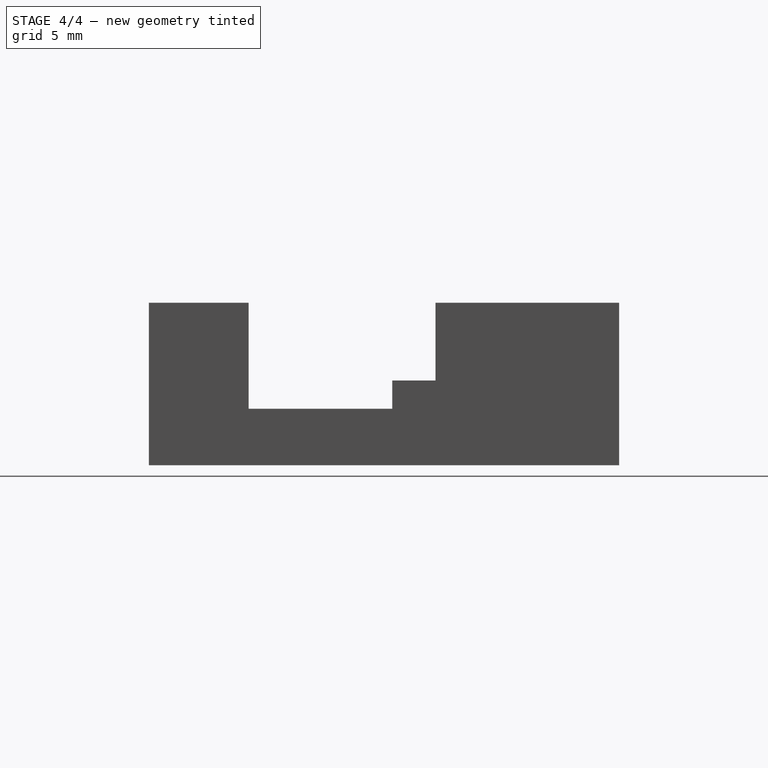
[diagram: stage 4 of 4 — right view after this stage's code; geometry added in this stage tinted green]
FEATURE [Sketcher::SketchObject] Sketch009
  ExternalGeometry = -> [Pocket002]
  FullyConstrained = true
  MapMode = 5
  Placement = pos=(0,0,5.5) rot=(0,0,1;0rad)
  Support = -> [Pocket002]
  expr: Constraints[10] = <<Sketch>>.Constraints.EndStopDistance
  expr: Constraints[11] = <<Datasheet>>#<<mgn9c>>.Dim_W
  sketch-geometry (5):
    g0: LineSegment StartX=-35.95 StartY=14.5 StartZ=0 EndX=-14.05 EndY=14.5 EndZ=0
    g1: LineSegment StartX=-14.05 StartY=14.5 StartZ=0 EndX=-14.05 EndY=-5.5 EndZ=0
    g2: LineSegment StartX=-14.05 StartY=-5.5 StartZ=0 EndX=-35.95 EndY=-5.5 EndZ=0
    g3: LineSegment StartX=-35.95 StartY=-5.5 StartZ=0 EndX=-35.95 EndY=14.5 EndZ=0
    g4: LineSegment StartX=-7.5 StartY=4.5 StartZ=0 EndX=-35.95 EndY=4.5 EndZ=0
  constraints (14):
    c: Coincident(g0,g1)
    c: Coincident(g1,g2)
    c: Coincident(g2,g3)
    c: Coincident(g3,g0)
    c: Horizontal(g0)
    c: Horizontal(g2)
    c: Vertical(g1)
    c: Vertical(g3)
    c: Coincident(g4,g-5)
    c: PointOnObject(g4,g3)
    c: DistanceX(g0,g-6) = 14.05
    c: DistanceY(g3,g3) = 20
    c: Symmetric(g0,g2,g4)
    c: PointOnObject(g-6,g3)
FEATURE [PartDesign::Pocket] Pocket003
  BaseFeature = -> Pocket002
  Direction = (0,0,-1)
  Length = 5
  Length2 = 5
  Profile = -> Sketch009
  ReferenceAxis = -> Sketch009 [N_Axis]
  Type = 2
FEATURE [Sketcher::SketchObject] Sketch010
  ExternalGeometry = -> [Pocket003]
  FullyConstrained = true
  MapMode = 5
  Placement = pos=(0,0,-6) rot=(1,0,0;3.14159rad)
  Support = -> [Pocket003]
  expr: Constraints[1] = <<Datasheet>>#<<mgn9c>>.Dim_D
  sketch-geometry (1):
    g0: Circle CenterX=-7.5 CenterY=-4.5 CenterZ=0 NormalX=0 NormalY=0 NormalZ=1 AngleXU=0 Radius=3
  constraints (2):
    c: Coincident(g0,g-3)
    c: Diameter(g0) = 6
FEATURE [PartDesign::Pocket] Pocket004
  BaseFeature = -> Pocket003
  Direction = (0,0,1)
  Length = 4
  Length2 = 5
  Profile = -> Sketch010
  ReferenceAxis = -> Sketch010 [N_Axis]
  Type = 0
  expr: Length = <<Pad002>>.Length - (<<Datasheet>>#<<mgn9c>>.Dim_Hr - <<Datasheet>>#<<mgn9c>>.Dim_h - 1 mm)
FEATURE [PartDesign::Body] Body001  label="BaseMagnetoPot_Opposite"
  Group = -> [Sketch004,Pad002,Sketch006,Pad003,Sketch008,Pocket002,Sketch009,Pocket003,Sketch010,Pocket004]
  Origin = -> Origin001
  Placement = pos=(-11,0,0) rot=(0,0,1;0rad)
  Tip = -> Pocket004
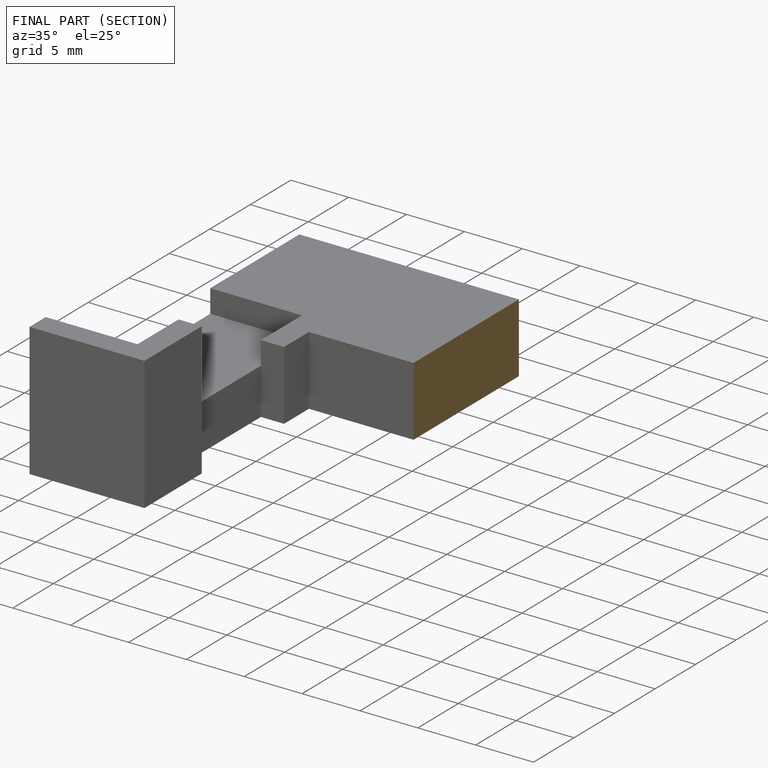
[diagram: finished part — half-section view (interior)]
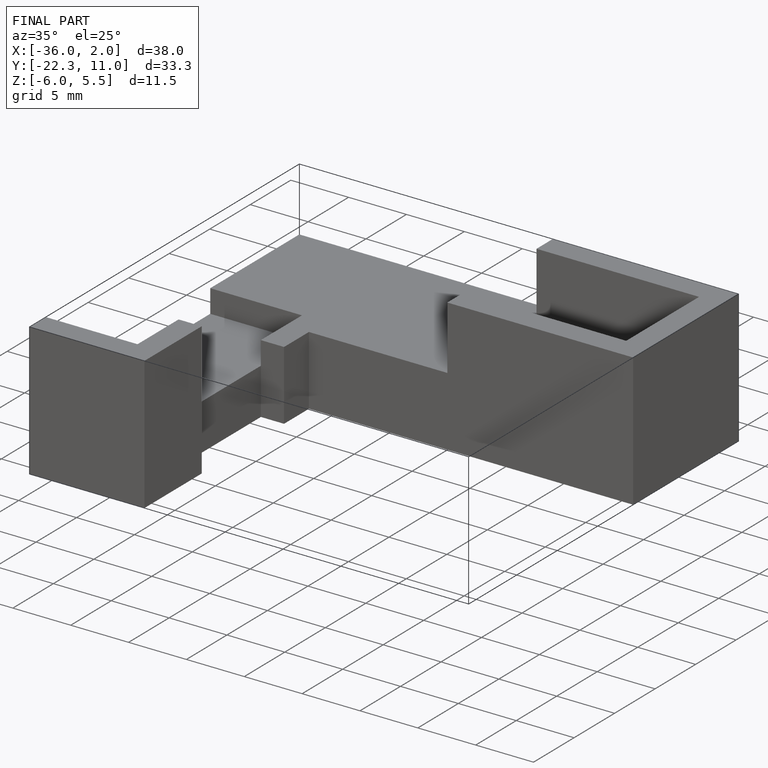
[diagram: finished part — iso view with bounding-box wireframe]
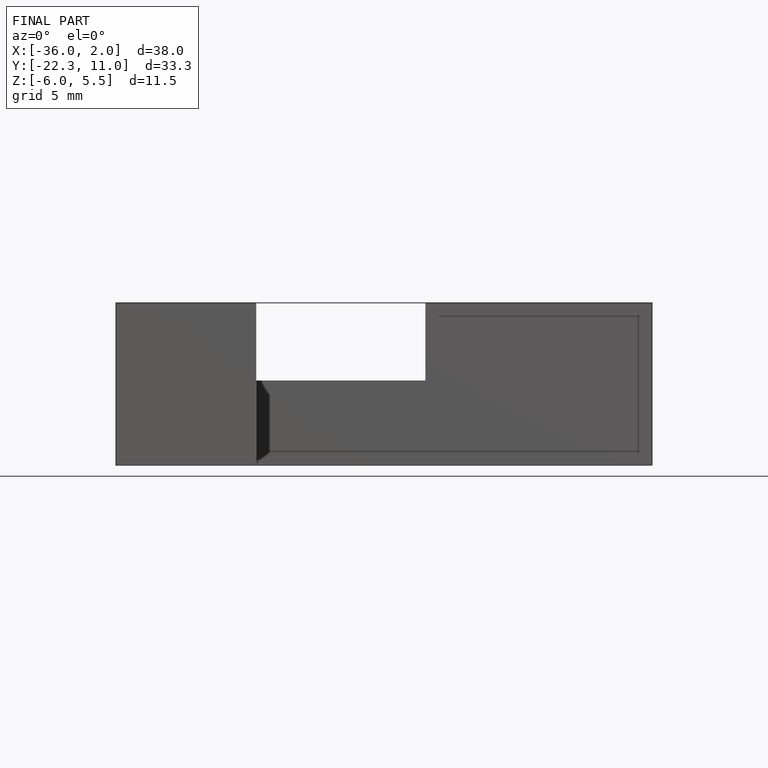
[diagram: finished part — front view with bounding-box wireframe]
